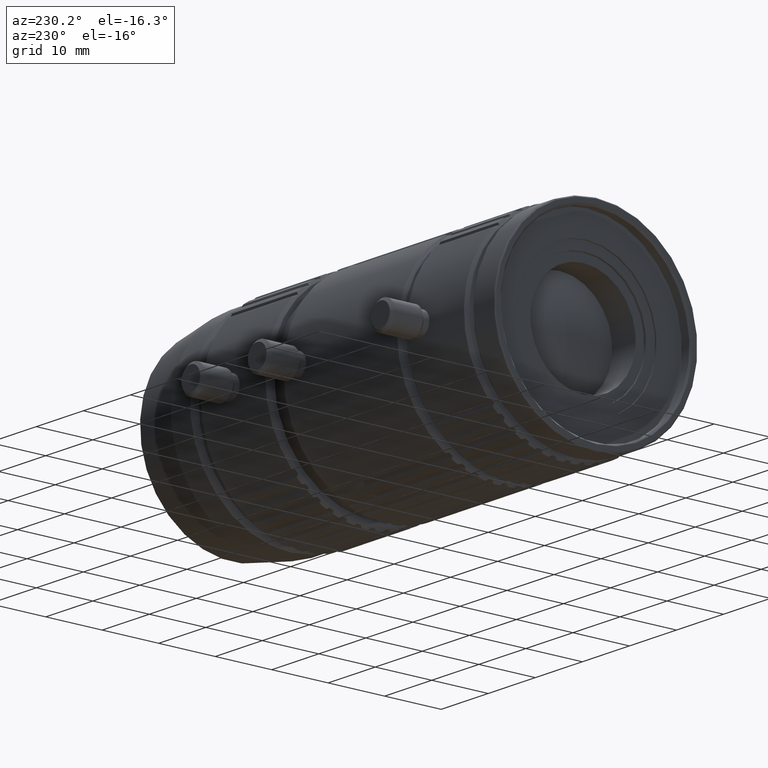
[diagram: clean part render]
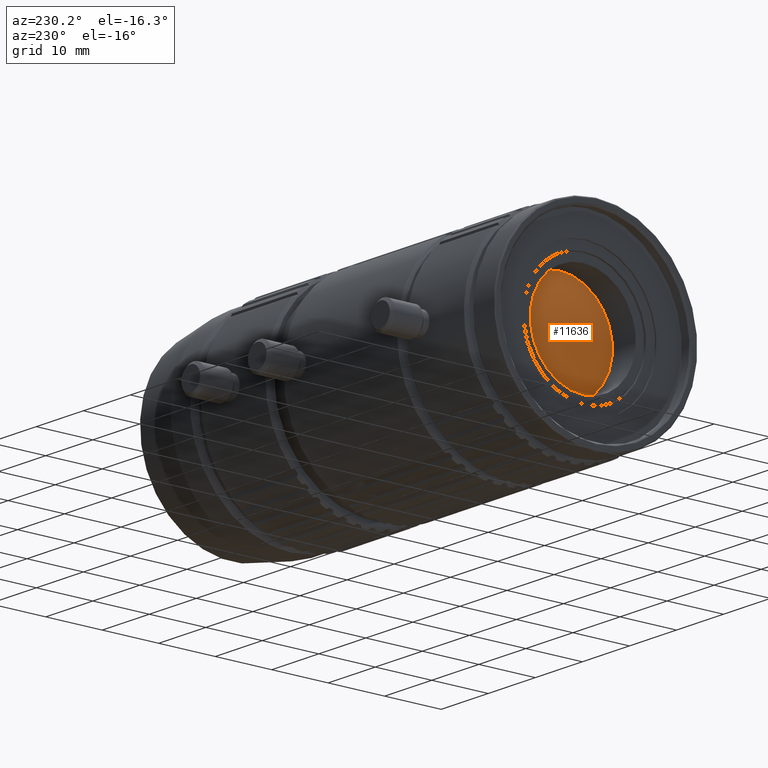
[diagram: same view with one face highlighted and labeled with its STEP entity id]
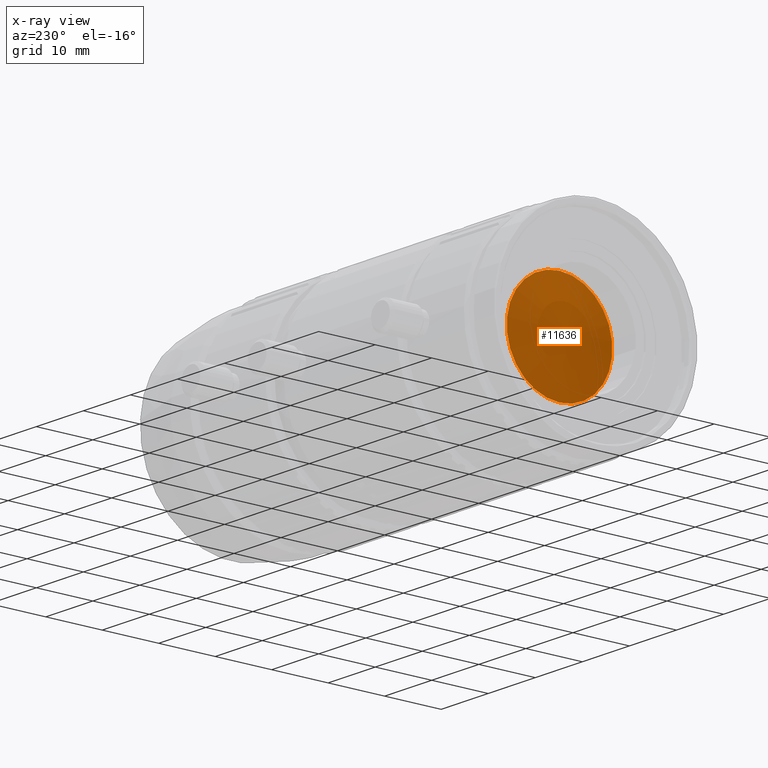
[diagram: x-ray of the same camera — body ghosted, the highlighted face saturated]
A machine part, auxiliary view. The second image highlights one B-rep face of the part: STEP entity #11636.
The next image is the same camera in x-ray: the body ghosted, the highlighted face saturated — about 0% of this face is hidden behind the body in this view.
In plain terms, the highlighted spherical surface has radius 29.765 mm.
Its self-contained STEP definition (entity closure, byte-faithful):
#43=SPHERICAL_SURFACE('',#12593,29.765);
#2406=ORIENTED_EDGE('',*,*,#4781,.T.);
#4781=EDGE_CURVE('',#5869,#5869,#6416,.T.);
#5869=VERTEX_POINT('',#18389);
#6416=CIRCLE('',#12592,9.35000000000005);
#6990=EDGE_LOOP('',(#2406));
#7528=FACE_BOUND('',#6990,.T.);
#11636=ADVANCED_FACE('',(#7528),#43,.T.);
#12592=AXIS2_PLACEMENT_3D('',#18388,#14998,#14999);
#12593=AXIS2_PLACEMENT_3D('',#18390,#15000,#15001);
#14998=DIRECTION('',(-1.,0.,8.25818670097774E-17));
#14999=DIRECTION('',(8.25818670097774E-17,0.,1.));
#15000=DIRECTION('',(-1.,0.,8.25818670097774E-17));
#15001=DIRECTION('',(-8.25818670097774E-17,0.,-1.));
#18388=CARTESIAN_POINT('',(-87.1583214223252,0.,-2.02201224615396E-14));
#18389=CARTESIAN_POINT('',(-87.1583214223252,0.,9.35000000000003));
#18390=CARTESIAN_POINT('',(-58.9000000815237,0.,-2.08166817117217E-14));